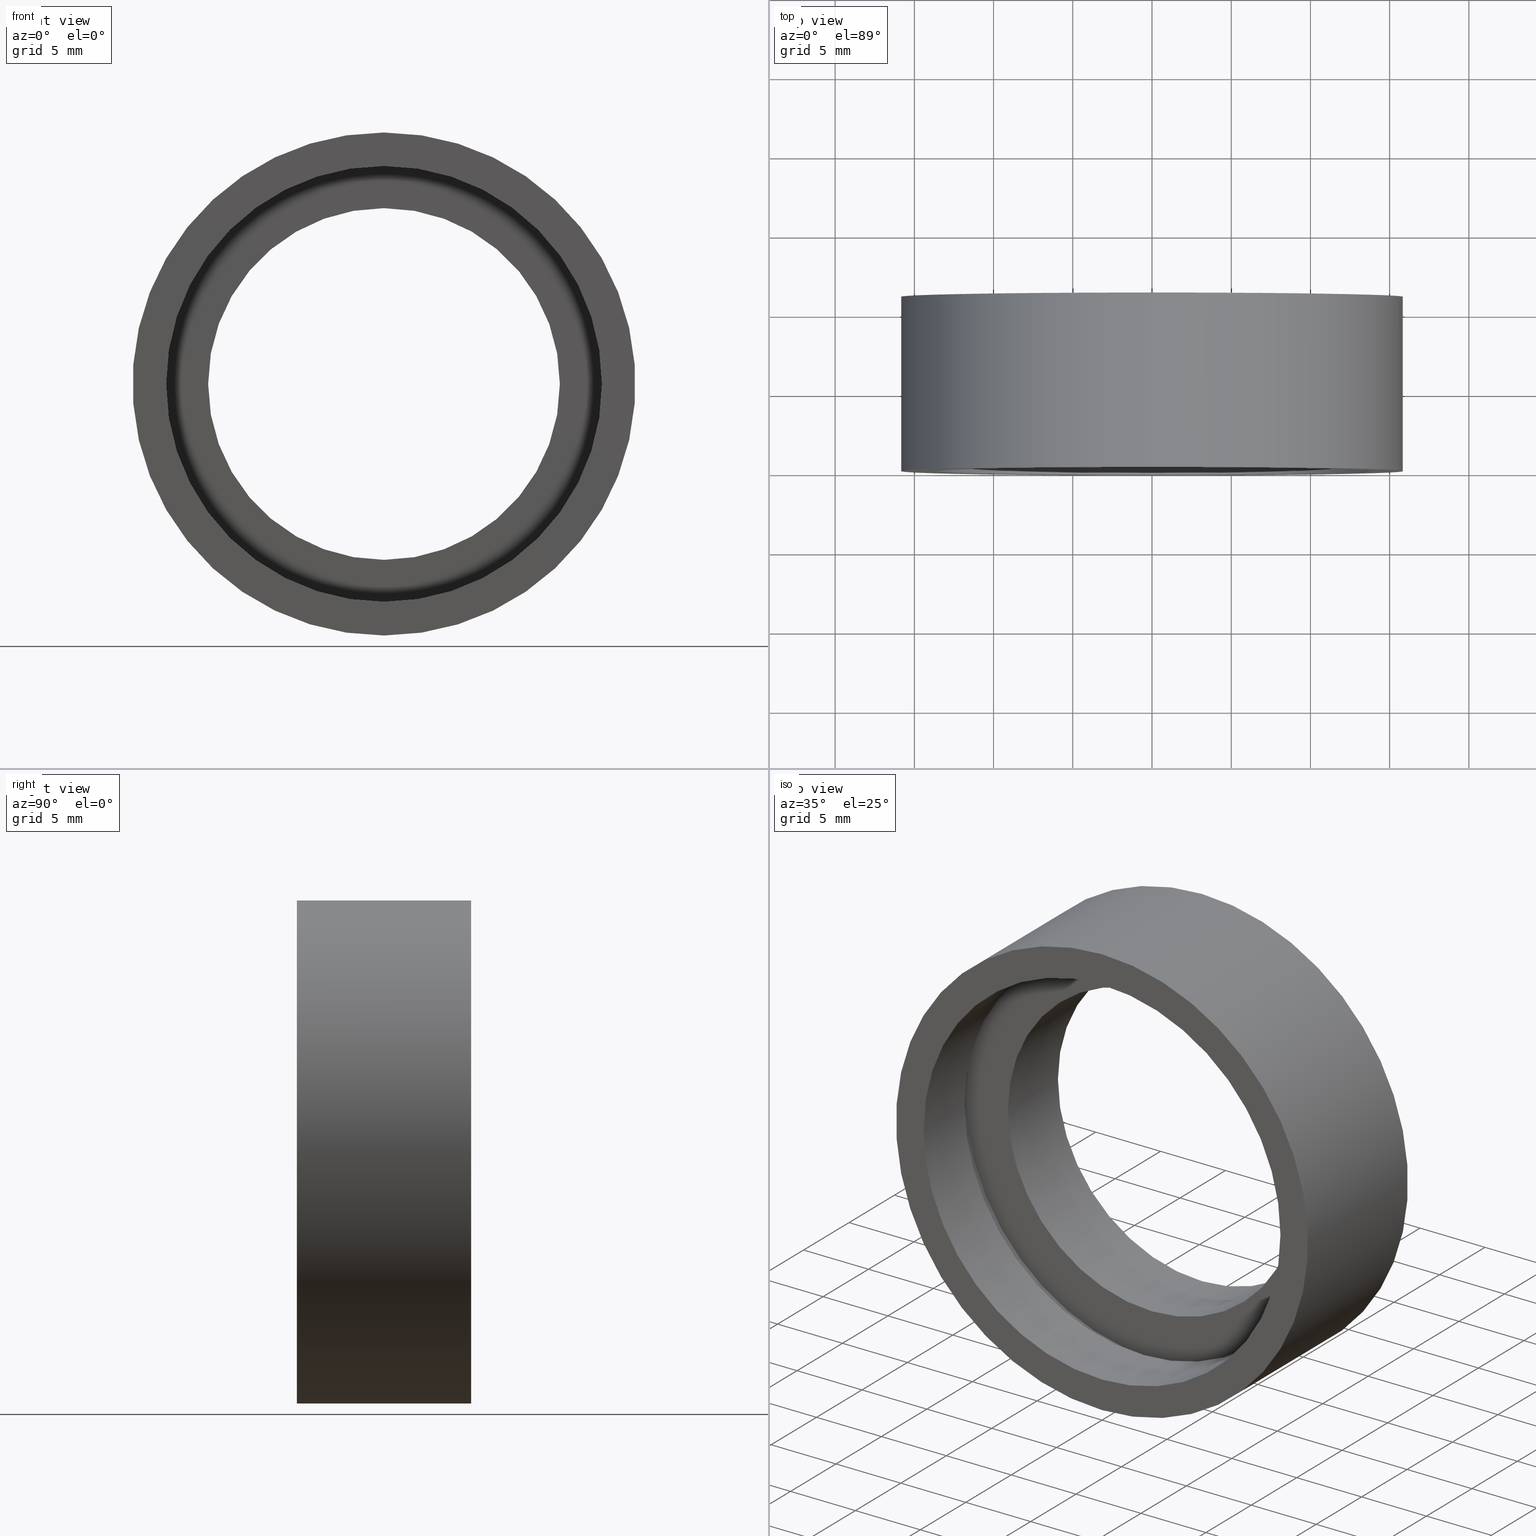
[diagram: canonical four-view strip — front | top / right | iso, engineering-drawing reading convention]
A machine part, canonical four-view strip (front | top / right | iso — engineering-drawing reading convention). The complete STEP part file that produces these views, byte-faithful:
ISO-10303-21;
HEADER;
FILE_DESCRIPTION (( 'STEP AP214' ),
    '1' );
FILE_NAME ('504071.STEP',
    '2019-10-09T07:45:33',
    ( 'user' ),
    ( '΢���й�' ),
    'SwSTEP 2.0',
    'SolidWorks 2016',
    '' );
FILE_SCHEMA (( 'AUTOMOTIVE_DESIGN' ));
ENDSEC;

DATA;
#1 = DIRECTION ( 'NONE',  ( 0.0000000000000000000, 0.0000000000000000000, 1.000000000000000000 ) ) ;
#2 = SURFACE_STYLE_FILL_AREA ( #232 ) ;
#3 = ORIENTED_EDGE ( 'NONE', *, *, #234, .F. ) ;
#4 = CLOSED_SHELL ( 'NONE', ( #98, #358, #142, #395, #177, #137, #25, #7, #118, #172, #170, #427 ) ) ;
#5 = AXIS2_PLACEMENT_3D ( 'NONE', #375, #378, #130 ) ;
#6 = CARTESIAN_POINT ( 'NONE',  ( 0.0000000000000000000, 4.499999999999997300, 14.35000000000000900 ) ) ;
#7 = ADVANCED_FACE ( 'NONE', ( #371 ), #36, .F. ) ;
#8 =( NAMED_UNIT ( * ) SI_UNIT ( $, .STERADIAN. ) SOLID_ANGLE_UNIT ( ) );
#9 = CARTESIAN_POINT ( 'NONE',  ( 0.0000000000000000000, 60.02082041425541100, 0.0000000000000000000 ) ) ;
#10 = DIRECTION ( 'NONE',  ( -0.0000000000000000000, 1.000000000000000000, -0.0000000000000000000 ) ) ;
#11 = CYLINDRICAL_SURFACE ( 'NONE', #72, 14.35000000000000700 ) ;
#12 = ORIENTED_EDGE ( 'NONE', *, *, #290, .T. ) ;
#13 = CIRCLE ( 'NONE', #164, 11.10000000000000700 ) ;
#14 = EDGE_LOOP ( 'NONE', ( #208, #166 ) ) ;
#15 = APPLICATION_PROTOCOL_DEFINITION ( 'draft international standard', 'automotive_design', 1998, #315 ) ;
#16 = DIRECTION ( 'NONE',  ( -0.0000000000000000000, 1.000000000000000000, -0.0000000000000000000 ) ) ;
#17 = DIRECTION ( 'NONE',  ( 0.0000000000000000000, 0.0000000000000000000, 1.000000000000000000 ) ) ;
#18 = PRODUCT_RELATED_PRODUCT_CATEGORY ( 'part', '', ( #100 ) ) ;
#19 = CARTESIAN_POINT ( 'NONE',  ( 1.359357947053563100E-015, 10.99999999999999600, -11.10000000000000700 ) ) ;
#20 = EDGE_LOOP ( 'NONE', ( #90, #251 ) ) ;
#21 = PRESENTATION_STYLE_ASSIGNMENT (( #169 ) ) ;
#22 = EDGE_LOOP ( 'NONE', ( #291, #377, #263, #216 ) ) ;
#23 = AXIS2_PLACEMENT_3D ( 'NONE', #415, #266, #157 ) ;
#24 =( LENGTH_UNIT ( ) NAMED_UNIT ( * ) SI_UNIT ( .MILLI., .METRE. ) );
#25 = ADVANCED_FACE ( 'NONE', ( #105, #343 ), #413, .F. ) ;
#26 = EDGE_CURVE ( 'NONE', #167, #186, #244, .T. ) ;
#27 = ORIENTED_EDGE ( 'NONE', *, *, #152, .T. ) ;
#28 = CARTESIAN_POINT ( 'NONE',  ( 0.0000000000000000000, 60.02082041425541100, 0.0000000000000000000 ) ) ;
#29 = CIRCLE ( 'NONE', #135, 11.10000000000000700 ) ;
#30 =( NAMED_UNIT ( * ) SI_UNIT ( $, .STERADIAN. ) SOLID_ANGLE_UNIT ( ) );
#31 =( NAMED_UNIT ( * ) SI_UNIT ( $, .STERADIAN. ) SOLID_ANGLE_UNIT ( ) );
#32 = PRODUCT_DEFINITION_SHAPE ( 'NONE', 'NONE',  #380 ) ;
#33 = EDGE_LOOP ( 'NONE', ( #300, #280, #84, #311 ) ) ;
#34 = CYLINDRICAL_SURFACE ( 'NONE', #110, 15.87500000000000400 ) ;
#35 = DIRECTION ( 'NONE',  ( -0.0000000000000000000, 1.000000000000000000, 0.0000000000000000000 ) ) ;
#36 = CYLINDRICAL_SURFACE ( 'NONE', #331, 14.35000000000000700 ) ;
#37 = DIRECTION ( 'NONE',  ( 0.0000000000000000000, 0.0000000000000000000, 1.000000000000000000 ) ) ;
#38 = DIRECTION ( 'NONE',  ( 1.000000000000000000, 0.0000000000000000000, 0.0000000000000000000 ) ) ;
#39 = AXIS2_PLACEMENT_3D ( 'NONE', #407, #185, #318 ) ;
#40 = FILL_AREA_STYLE_COLOUR ( '', #310 ) ;
#41 = SURFACE_STYLE_FILL_AREA ( #288 ) ;
#42 = AXIS2_PLACEMENT_3D ( 'NONE', #198, #155, #282 ) ;
#43 = VERTEX_POINT ( 'NONE', #259 ) ;
#44 = SURFACE_STYLE_FILL_AREA ( #393 ) ;
#45 = PRODUCT_DEFINITION_CONTEXT ( 'detailed design', #315, 'design' ) ;
#46 = DIRECTION ( 'NONE',  ( 0.0000000000000000000, 0.0000000000000000000, 1.000000000000000000 ) ) ;
#47 = CARTESIAN_POINT ( 'NONE',  ( 0.0000000000000000000, 0.0000000000000000000, 15.87500000000000400 ) ) ;
#48 = AXIS2_PLACEMENT_3D ( 'NONE', #28, #59, #17 ) ;
#49 = EDGE_CURVE ( 'NONE', #304, #210, #92, .T. ) ;
#50 = CIRCLE ( 'NONE', #73, 14.35000000000000900 ) ;
#51 = CARTESIAN_POINT ( 'NONE',  ( 0.0000000000000000000, 0.0000000000000000000, 0.0000000000000000000 ) ) ;
#52 = SURFACE_STYLE_USAGE ( .BOTH. , #148 ) ;
#53 = FACE_OUTER_BOUND ( 'NONE', #330, .T. ) ;
#54 = CARTESIAN_POINT ( 'NONE',  ( 0.0000000000000000000, 4.499999999999997300, 0.0000000000000000000 ) ) ;
#55 = CARTESIAN_POINT ( 'NONE',  ( 1.944126793646423600E-015, 60.02082041425541100, -15.87500000000000400 ) ) ;
#56 = LINE ( 'NONE', #374, #241 ) ;
#57 = ORIENTED_EDGE ( 'NONE', *, *, #207, .F. ) ;
#58 = CARTESIAN_POINT ( 'NONE',  ( 0.0000000000000000000, 60.02082041425541100, 0.0000000000000000000 ) ) ;
#59 = DIRECTION ( 'NONE',  ( -0.0000000000000000000, 1.000000000000000000, -0.0000000000000000000 ) ) ;
#60 = VERTEX_POINT ( 'NONE', #414 ) ;
#61 = CIRCLE ( 'NONE', #434, 14.35000000000000500 ) ;
#62 = UNCERTAINTY_MEASURE_WITH_UNIT (LENGTH_MEASURE( 1.000000000000000100E-005 ), #347, 'distance_accuracy_value', 'NONE');
#63 =( NAMED_UNIT ( * ) PLANE_ANGLE_UNIT ( ) SI_UNIT ( $, .RADIAN. ) );
#64 = DIRECTION ( 'NONE',  ( -0.0000000000000000000, 1.000000000000000000, -0.0000000000000000000 ) ) ;
#65 = MECHANICAL_DESIGN_GEOMETRIC_PRESENTATION_REPRESENTATION (  '', ( #215 ), #123 ) ;
#66 = FACE_OUTER_BOUND ( 'NONE', #97, .T. ) ;
#67 = ORIENTED_EDGE ( 'NONE', *, *, #124, .T. ) ;
#68 = AXIS2_PLACEMENT_3D ( 'NONE', #257, #296, #85 ) ;
#69 = UNCERTAINTY_MEASURE_WITH_UNIT (LENGTH_MEASURE( 1.000000000000000100E-005 ), #379, 'distance_accuracy_value', 'NONE');
#70 = DIRECTION ( 'NONE',  ( 0.0000000000000000000, 0.0000000000000000000, 1.000000000000000000 ) ) ;
#71 = DIRECTION ( 'NONE',  ( 0.0000000000000000000, 0.0000000000000000000, 1.000000000000000000 ) ) ;
#72 = AXIS2_PLACEMENT_3D ( 'NONE', #58, #283, #46 ) ;
#73 = AXIS2_PLACEMENT_3D ( 'NONE', #54, #120, #160 ) ;
#74 = DIRECTION ( 'NONE',  ( 0.0000000000000000000, 0.0000000000000000000, 1.000000000000000000 ) ) ;
#75 = DIRECTION ( 'NONE',  ( 0.0000000000000000000, -1.000000000000000000, 0.0000000000000000000 ) ) ;
#76 = CYLINDRICAL_SURFACE ( 'NONE', #48, 13.75000000000000700 ) ;
#77 = COLOUR_RGB ( '',1.000000000000000000, 1.000000000000000000, 1.000000000000000000 ) ;
#78 = CARTESIAN_POINT ( 'NONE',  ( 1.359357947053563100E-015, 60.02082041425541100, -11.10000000000000700 ) ) ;
#79 = FILL_AREA_STYLE_COLOUR ( '', #149 ) ;
#80 = CARTESIAN_POINT ( 'NONE',  ( 0.0000000000000000000, 5.499999999999998200, 0.0000000000000000000 ) ) ;
#81 = ORIENTED_EDGE ( 'NONE', *, *, #162, .F. ) ;
#82 = DIRECTION ( 'NONE',  ( 0.0000000000000000000, 0.0000000000000000000, 1.000000000000000000 ) ) ;
#83 = VERTEX_POINT ( 'NONE', #265 ) ;
#84 = ORIENTED_EDGE ( 'NONE', *, *, #307, .F. ) ;
#85 = DIRECTION ( 'NONE',  ( 0.0000000000000000000, 0.0000000000000000000, 1.000000000000000000 ) ) ;
#86 = AXIS2_PLACEMENT_3D ( 'NONE', #51, #133, #82 ) ;
#87 = DIRECTION ( 'NONE',  ( -0.0000000000000000000, 1.000000000000000000, -0.0000000000000000000 ) ) ;
#88 = PRESENTATION_LAYER_ASSIGNMENT (  '', '', ( #94 ) ) ;
#89 = COLOUR_RGB ( '',1.000000000000000000, 1.000000000000000000, 1.000000000000000000 ) ;
#90 = ORIENTED_EDGE ( 'NONE', *, *, #175, .T. ) ;
#91 = FACE_OUTER_BOUND ( 'NONE', #33, .T. ) ;
#92 = LINE ( 'NONE', #55, #313 ) ;
#93 = FILL_AREA_STYLE ('',( #40 ) ) ;
#94 = STYLED_ITEM ( 'NONE', ( #268 ), #172 ) ;
#95 = CARTESIAN_POINT ( 'NONE',  ( 0.0000000000000000000, 0.0000000000000000000, 0.0000000000000000000 ) ) ;
#96 = DIRECTION ( 'NONE',  ( -0.0000000000000000000, 1.000000000000000000, -0.0000000000000000000 ) ) ;
#97 = EDGE_LOOP ( 'NONE', ( #126, #12, #333, #81 ) ) ;
#98 = ADVANCED_FACE ( 'NONE', ( #91 ), #34, .T. ) ;
#99 = APPLICATION_PROTOCOL_DEFINITION ( 'draft international standard', 'automotive_design', 1998, #214 ) ;
#100 = PRODUCT ( '504071', '504071', '', ( #430 ) ) ;
#101 = FILL_AREA_STYLE ('',( #163 ) ) ;
#102 = DIRECTION ( 'NONE',  ( -0.0000000000000000000, 1.000000000000000000, -0.0000000000000000000 ) ) ;
#103 = DIRECTION ( 'NONE',  ( -0.0000000000000000000, 1.000000000000000000, -0.0000000000000000000 ) ) ;
#104 =( NAMED_UNIT ( * ) PLANE_ANGLE_UNIT ( ) SI_UNIT ( $, .RADIAN. ) );
#105 = FACE_BOUND ( 'NONE', #134, .T. ) ;
#106 =( GEOMETRIC_REPRESENTATION_CONTEXT ( 3 ) GLOBAL_UNCERTAINTY_ASSIGNED_CONTEXT ( ( #223 ) ) GLOBAL_UNIT_ASSIGNED_CONTEXT ( ( #359, #398, #428 ) ) REPRESENTATION_CONTEXT ( 'NONE', 'WORKASPACE' ) );
#107 = CARTESIAN_POINT ( 'NONE',  ( 0.0000000000000000000, 0.0000000000000000000, 0.0000000000000000000 ) ) ;
#108 = FACE_OUTER_BOUND ( 'NONE', #426, .T. ) ;
#109 = DIRECTION ( 'NONE',  ( -0.0000000000000000000, 1.000000000000000000, -0.0000000000000000000 ) ) ;
#110 = AXIS2_PLACEMENT_3D ( 'NONE', #306, #334, #412 ) ;
#111 = EDGE_LOOP ( 'NONE', ( #272, #67 ) ) ;
#112 = FACE_OUTER_BOUND ( 'NONE', #122, .T. ) ;
#113 = DIRECTION ( 'NONE',  ( -0.0000000000000000000, 1.000000000000000000, -0.0000000000000000000 ) ) ;
#114 = CARTESIAN_POINT ( 'NONE',  ( 0.0000000000000000000, 60.02082041425541100, 15.87500000000000400 ) ) ;
#115 = CARTESIAN_POINT ( 'NONE',  ( 0.0000000000000000000, 10.99999999999999600, 0.0000000000000000000 ) ) ;
#116 = AXIS2_PLACEMENT_3D ( 'NONE', #131, #182, #180 ) ;
#117 = PRESENTATION_STYLE_ASSIGNMENT (( #52 ) ) ;
#118 = ADVANCED_FACE ( 'NONE', ( #108, #422 ), #190, .F. ) ;
#119 = EDGE_CURVE ( 'NONE', #322, #417, #50, .T. ) ;
#120 = DIRECTION ( 'NONE',  ( -0.0000000000000000000, 1.000000000000000000, -0.0000000000000000000 ) ) ;
#121 =( NAMED_UNIT ( * ) PLANE_ANGLE_UNIT ( ) SI_UNIT ( $, .RADIAN. ) );
#122 = EDGE_LOOP ( 'NONE', ( #57, #381, #425, #174 ) ) ;
#123 =( GEOMETRIC_REPRESENTATION_CONTEXT ( 3 ) GLOBAL_UNCERTAINTY_ASSIGNED_CONTEXT ( ( #391 ) ) GLOBAL_UNIT_ASSIGNED_CONTEXT ( ( #24, #161, #219 ) ) REPRESENTATION_CONTEXT ( 'NONE', 'WORKASPACE' ) );
#124 = EDGE_CURVE ( 'NONE', #186, #167, #192, .T. ) ;
#125 = ORIENTED_EDGE ( 'NONE', *, *, #281, .F. ) ;
#126 = ORIENTED_EDGE ( 'NONE', *, *, #299, .F. ) ;
#127 = CIRCLE ( 'NONE', #86, 15.87500000000000400 ) ;
#128 = AXIS2_PLACEMENT_3D ( 'NONE', #324, #64, #179 ) ;
#129 = CARTESIAN_POINT ( 'NONE',  ( 14.35000000000000500, 5.500000000000000000, 0.0000000000000000000 ) ) ;
#130 = DIRECTION ( 'NONE',  ( 0.0000000000000000000, 0.0000000000000000000, 1.000000000000000000 ) ) ;
#131 = CARTESIAN_POINT ( 'NONE',  ( 11.10000000000000700, 11.00000000000000000, 0.0000000000000000000 ) ) ;
#132 = AXIS2_PLACEMENT_3D ( 'NONE', #270, #16, #235 ) ;
#133 = DIRECTION ( 'NONE',  ( -0.0000000000000000000, 1.000000000000000000, -0.0000000000000000000 ) ) ;
#134 = EDGE_LOOP ( 'NONE', ( #355, #351 ) ) ;
#135 = AXIS2_PLACEMENT_3D ( 'NONE', #352, #401, #70 ) ;
#136 = CARTESIAN_POINT ( 'NONE',  ( 0.0000000000000000000, 60.02082041425541100, 0.0000000000000000000 ) ) ;
#137 = ADVANCED_FACE ( 'NONE', ( #404 ), #76, .F. ) ;
#138 = CIRCLE ( 'NONE', #159, 15.87500000000000400 ) ;
#139 = EDGE_LOOP ( 'NONE', ( #189, #327, #336, #354 ) ) ;
#140 = DIRECTION ( 'NONE',  ( -0.0000000000000000000, 1.000000000000000000, -0.0000000000000000000 ) ) ;
#141 = AXIS2_PLACEMENT_3D ( 'NONE', #314, #384, #71 ) ;
#142 = ADVANCED_FACE ( 'NONE', ( #66 ), #11, .F. ) ;
#143 = CARTESIAN_POINT ( 'NONE',  ( 0.0000000000000000000, 10.99999999999999600, 15.87500000000000400 ) ) ;
#144 = CARTESIAN_POINT ( 'NONE',  ( 0.0000000000000000000, 60.02082041425541100, 0.0000000000000000000 ) ) ;
#145 = AXIS2_PLACEMENT_3D ( 'NONE', #144, #140, #402 ) ;
#146 = DIRECTION ( 'NONE',  ( -0.0000000000000000000, 1.000000000000000000, -0.0000000000000000000 ) ) ;
#147 = STYLED_ITEM ( 'NONE', ( #117 ), #395 ) ;
#148 = SURFACE_SIDE_STYLE ('',( #230 ) ) ;
#149 = COLOUR_RGB ( '',1.000000000000000000, 1.000000000000000000, 1.000000000000000000 ) ;
#150 = CARTESIAN_POINT ( 'NONE',  ( 0.0000000000000000000, 4.499999999999997300, 13.75000000000000700 ) ) ;
#151 = AXIS2_PLACEMENT_3D ( 'NONE', #129, #35, #278 ) ;
#152 = EDGE_CURVE ( 'NONE', #228, #317, #387, .T. ) ;
#153 = CIRCLE ( 'NONE', #293, 15.87500000000000400 ) ;
#154 = ORIENTED_EDGE ( 'NONE', *, *, #299, .T. ) ;
#155 = DIRECTION ( 'NONE',  ( -0.0000000000000000000, 1.000000000000000000, -0.0000000000000000000 ) ) ;
#156 = STYLED_ITEM ( 'NONE', ( #21 ), #335 ) ;
#157 = DIRECTION ( 'NONE',  ( 0.0000000000000000000, 0.0000000000000000000, 1.000000000000000000 ) ) ;
#158 = CARTESIAN_POINT ( 'NONE',  ( 1.757368156776452800E-015, 60.02082041425541100, -14.35000000000000700 ) ) ;
#159 = AXIS2_PLACEMENT_3D ( 'NONE', #115, #203, #247 ) ;
#160 = DIRECTION ( 'NONE',  ( 0.0000000000000000000, 0.0000000000000000000, 1.000000000000000000 ) ) ;
#161 =( NAMED_UNIT ( * ) PLANE_ANGLE_UNIT ( ) SI_UNIT ( $, .RADIAN. ) );
#162 = EDGE_CURVE ( 'NONE', #322, #253, #56, .T. ) ;
#163 = FILL_AREA_STYLE_COLOUR ( '', #77 ) ;
#164 = AXIS2_PLACEMENT_3D ( 'NONE', #365, #363, #408 ) ;
#165 = LINE ( 'NONE', #396, #260 ) ;
#166 = ORIENTED_EDGE ( 'NONE', *, *, #173, .T. ) ;
#167 = VERTEX_POINT ( 'NONE', #256 ) ;
#168 = CARTESIAN_POINT ( 'NONE',  ( 0.0000000000000000000, 5.499999999999998200, 0.0000000000000000000 ) ) ;
#169 = SURFACE_STYLE_USAGE ( .BOTH. , #245 ) ;
#170 = ADVANCED_FACE ( 'NONE', ( #242, #217 ), #222, .F. ) ;
#171 = DIRECTION ( 'NONE',  ( -0.0000000000000000000, 1.000000000000000000, -0.0000000000000000000 ) ) ;
#172 = ADVANCED_FACE ( 'NONE', ( #112 ), #239, .F. ) ;
#173 = EDGE_CURVE ( 'NONE', #210, #338, #138, .T. ) ;
#174 = ORIENTED_EDGE ( 'NONE', *, *, #281, .T. ) ;
#175 = EDGE_CURVE ( 'NONE', #43, #83, #29, .T. ) ;
#176 = CYLINDRICAL_SURFACE ( 'NONE', #145, 15.87500000000000400 ) ;
#177 = ADVANCED_FACE ( 'NONE', ( #53, #287 ), #267, .F. ) ;
#178 = PRESENTATION_LAYER_ASSIGNMENT (  '', '', ( #156 ) ) ;
#179 = DIRECTION ( 'NONE',  ( 0.0000000000000000000, 0.0000000000000000000, 1.000000000000000000 ) ) ;
#180 = DIRECTION ( 'NONE',  ( 0.0000000000000000000, -0.0000000000000000000, -1.000000000000000000 ) ) ;
#181 = LINE ( 'NONE', #78, #237 ) ;
#182 = DIRECTION ( 'NONE',  ( 0.0000000000000000000, -1.000000000000000000, 0.0000000000000000000 ) ) ;
#183 = CARTESIAN_POINT ( 'NONE',  ( 0.0000000000000000000, 0.0000000000000000000, 0.0000000000000000000 ) ) ;
#184 = SHAPE_DEFINITION_REPRESENTATION ( #32, #218 ) ;
#185 = DIRECTION ( 'NONE',  ( -0.0000000000000000000, 1.000000000000000000, -0.0000000000000000000 ) ) ;
#186 = VERTEX_POINT ( 'NONE', #346 ) ;
#187 = CARTESIAN_POINT ( 'NONE',  ( 0.0000000000000000000, 60.02082041425541100, 0.0000000000000000000 ) ) ;
#188 = PRESENTATION_STYLE_ASSIGNMENT (( #394 ) ) ;
#189 = ORIENTED_EDGE ( 'NONE', *, *, #290, .F. ) ;
#190 = PLANE ( 'NONE',  #151 ) ;
#191 = ORIENTED_EDGE ( 'NONE', *, *, #400, .T. ) ;
#192 = CIRCLE ( 'NONE', #128, 13.75000000000000700 ) ;
#193 =( LENGTH_UNIT ( ) NAMED_UNIT ( * ) SI_UNIT ( .MILLI., .METRE. ) );
#194 = VECTOR ( 'NONE', #113, 1000.000000000000000 ) ;
#195 =( LENGTH_UNIT ( ) NAMED_UNIT ( * ) SI_UNIT ( .MILLI., .METRE. ) );
#196 = EDGE_LOOP ( 'NONE', ( #348, #212, #397, #3 ) ) ;
#197 = DIRECTION ( 'NONE',  ( -0.0000000000000000000, 1.000000000000000000, -0.0000000000000000000 ) ) ;
#198 = CARTESIAN_POINT ( 'NONE',  ( 0.0000000000000000000, 60.02082041425541100, 0.0000000000000000000 ) ) ;
#199 =( LENGTH_UNIT ( ) NAMED_UNIT ( * ) SI_UNIT ( .MILLI., .METRE. ) );
#200 = SURFACE_STYLE_USAGE ( .BOTH. , #209 ) ;
#201 =( NAMED_UNIT ( * ) SI_UNIT ( $, .STERADIAN. ) SOLID_ANGLE_UNIT ( ) );
#202 = MECHANICAL_DESIGN_GEOMETRIC_PRESENTATION_REPRESENTATION (  '', ( #156 ), #220 ) ;
#203 = DIRECTION ( 'NONE',  ( -0.0000000000000000000, 1.000000000000000000, -0.0000000000000000000 ) ) ;
#204 = SURFACE_STYLE_USAGE ( .BOTH. , #294 ) ;
#205 = FACE_OUTER_BOUND ( 'NONE', #279, .T. ) ;
#206 = AXIS2_PLACEMENT_3D ( 'NONE', #9, #10, #74 ) ;
#207 = EDGE_CURVE ( 'NONE', #83, #228, #181, .T. ) ;
#208 = ORIENTED_EDGE ( 'NONE', *, *, #307, .T. ) ;
#209 = SURFACE_SIDE_STYLE ('',( #224 ) ) ;
#210 = VERTEX_POINT ( 'NONE', #308 ) ;
#211 = FILL_AREA_STYLE ('',( #236 ) ) ;
#212 = ORIENTED_EDGE ( 'NONE', *, *, #350, .T. ) ;
#213 = CYLINDRICAL_SURFACE ( 'NONE', #248, 13.75000000000000700 ) ;
#214 = APPLICATION_CONTEXT ( 'automotive_design' ) ;
#215 = STYLED_ITEM ( 'NONE', ( #301 ), #218 ) ;
#216 = ORIENTED_EDGE ( 'NONE', *, *, #246, .T. ) ;
#217 = FACE_OUTER_BOUND ( 'NONE', #14, .T. ) ;
#218 = ADVANCED_BREP_SHAPE_REPRESENTATION ( '504071', ( #335, #225 ), #432 ) ;
#219 =( NAMED_UNIT ( * ) SI_UNIT ( $, .STERADIAN. ) SOLID_ANGLE_UNIT ( ) );
#220 =( GEOMETRIC_REPRESENTATION_CONTEXT ( 3 ) GLOBAL_UNCERTAINTY_ASSIGNED_CONTEXT ( ( #69 ) ) GLOBAL_UNIT_ASSIGNED_CONTEXT ( ( #379, #121, #30 ) ) REPRESENTATION_CONTEXT ( 'NONE', 'WORKASPACE' ) );
#221 = VERTEX_POINT ( 'NONE', #150 ) ;
#222 = PLANE ( 'NONE',  #116 ) ;
#223 = UNCERTAINTY_MEASURE_WITH_UNIT (LENGTH_MEASURE( 1.000000000000000100E-005 ), #359, 'distance_accuracy_value', 'NONE');
#224 = SURFACE_STYLE_FILL_AREA ( #211 ) ;
#225 = AXIS2_PLACEMENT_3D ( 'NONE', #95, #418, #38 ) ;
#226 = EDGE_LOOP ( 'NONE', ( #125, #286 ) ) ;
#227 = FACE_OUTER_BOUND ( 'NONE', #361, .T. ) ;
#228 = VERTEX_POINT ( 'NONE', #19 ) ;
#229 = EDGE_CURVE ( 'NONE', #261, #338, #420, .T. ) ;
#230 = SURFACE_STYLE_FILL_AREA ( #101 ) ;
#231 = CARTESIAN_POINT ( 'NONE',  ( 13.75000000000000700, 4.499999999999999100, 0.0000000000000000000 ) ) ;
#232 = FILL_AREA_STYLE ('',( #79 ) ) ;
#233 = CARTESIAN_POINT ( 'NONE',  ( 1.944126793646423600E-015, 0.0000000000000000000, -15.87500000000000400 ) ) ;
#234 = EDGE_CURVE ( 'NONE', #167, #221, #360, .T. ) ;
#235 = DIRECTION ( 'NONE',  ( 0.0000000000000000000, 0.0000000000000000000, 1.000000000000000000 ) ) ;
#236 = FILL_AREA_STYLE_COLOUR ( '', #431 ) ;
#237 = VECTOR ( 'NONE', #171, 1000.000000000000000 ) ;
#238 = CIRCLE ( 'NONE', #68, 13.75000000000000700 ) ;
#239 = CYLINDRICAL_SURFACE ( 'NONE', #206, 11.10000000000000700 ) ;
#240 = DIRECTION ( 'NONE',  ( -0.0000000000000000000, 1.000000000000000000, -0.0000000000000000000 ) ) ;
#241 = VECTOR ( 'NONE', #102, 1000.000000000000000 ) ;
#242 = FACE_BOUND ( 'NONE', #226, .T. ) ;
#243 = UNCERTAINTY_MEASURE_WITH_UNIT (LENGTH_MEASURE( 1.000000000000000100E-005 ), #195, 'distance_accuracy_value', 'NONE');
#244 = CIRCLE ( 'NONE', #262, 13.75000000000000700 ) ;
#245 = SURFACE_SIDE_STYLE ('',( #41 ) ) ;
#246 = EDGE_CURVE ( 'NONE', #221, #340, #238, .T. ) ;
#247 = DIRECTION ( 'NONE',  ( 0.0000000000000000000, 0.0000000000000000000, 1.000000000000000000 ) ) ;
#248 = AXIS2_PLACEMENT_3D ( 'NONE', #136, #96, #37 ) ;
#249 = DIRECTION ( 'NONE',  ( -0.0000000000000000000, 1.000000000000000000, -0.0000000000000000000 ) ) ;
#250 = DIRECTION ( 'NONE',  ( -0.0000000000000000000, 1.000000000000000000, -0.0000000000000000000 ) ) ;
#251 = ORIENTED_EDGE ( 'NONE', *, *, #295, .T. ) ;
#252 = FACE_OUTER_BOUND ( 'NONE', #196, .T. ) ;
#253 = VERTEX_POINT ( 'NONE', #325 ) ;
#254 = DIRECTION ( 'NONE',  ( -0.0000000000000000000, 1.000000000000000000, -0.0000000000000000000 ) ) ;
#255 = STYLED_ITEM ( 'NONE', ( #188 ), #358 ) ;
#256 = CARTESIAN_POINT ( 'NONE',  ( 0.0000000000000000000, 0.0000000000000000000, 13.75000000000000700 ) ) ;
#257 = CARTESIAN_POINT ( 'NONE',  ( 0.0000000000000000000, 4.499999999999997300, 0.0000000000000000000 ) ) ;
#258 = DIRECTION ( 'NONE',  ( 0.0000000000000000000, 0.0000000000000000000, 1.000000000000000000 ) ) ;
#259 = CARTESIAN_POINT ( 'NONE',  ( 0.0000000000000000000, 5.499999999999998200, 11.10000000000000700 ) ) ;
#260 = VECTOR ( 'NONE', #356, 1000.000000000000000 ) ;
#261 = VERTEX_POINT ( 'NONE', #47 ) ;
#262 = AXIS2_PLACEMENT_3D ( 'NONE', #107, #109, #264 ) ;
#263 = ORIENTED_EDGE ( 'NONE', *, *, #234, .T. ) ;
#264 = DIRECTION ( 'NONE',  ( 0.0000000000000000000, 0.0000000000000000000, 1.000000000000000000 ) ) ;
#265 = CARTESIAN_POINT ( 'NONE',  ( 1.359357947053563100E-015, 5.499999999999998200, -11.10000000000000700 ) ) ;
#266 = DIRECTION ( 'NONE',  ( -0.0000000000000000000, 1.000000000000000000, -0.0000000000000000000 ) ) ;
#267 = PLANE ( 'NONE',  #141 ) ;
#268 = PRESENTATION_STYLE_ASSIGNMENT (( #200 ) ) ;
#269 = PRESENTATION_STYLE_ASSIGNMENT (( #353 ) ) ;
#270 = CARTESIAN_POINT ( 'NONE',  ( 0.0000000000000000000, 4.499999999999997300, 0.0000000000000000000 ) ) ;
#271 =( NAMED_UNIT ( * ) PLANE_ANGLE_UNIT ( ) SI_UNIT ( $, .RADIAN. ) );
#272 = ORIENTED_EDGE ( 'NONE', *, *, #26, .T. ) ;
#273 = CIRCLE ( 'NONE', #23, 15.87500000000000400 ) ;
#274 = CYLINDRICAL_SURFACE ( 'NONE', #42, 11.10000000000000700 ) ;
#275 = PRESENTATION_LAYER_ASSIGNMENT (  '', '', ( #255 ) ) ;
#276 = AXIS2_PLACEMENT_3D ( 'NONE', #231, #75, #367 ) ;
#277 = VECTOR ( 'NONE', #250, 1000.000000000000000 ) ;
#278 = DIRECTION ( 'NONE',  ( 0.0000000000000000000, 0.0000000000000000000, 1.000000000000000000 ) ) ;
#279 = EDGE_LOOP ( 'NONE', ( #382, #321, #27, #370 ) ) ;
#280 = ORIENTED_EDGE ( 'NONE', *, *, #49, .T. ) ;
#281 = EDGE_CURVE ( 'NONE', #317, #228, #13, .T. ) ;
#282 = DIRECTION ( 'NONE',  ( 0.0000000000000000000, 0.0000000000000000000, 1.000000000000000000 ) ) ;
#283 = DIRECTION ( 'NONE',  ( -0.0000000000000000000, 1.000000000000000000, -0.0000000000000000000 ) ) ;
#284 = ORIENTED_EDGE ( 'NONE', *, *, #119, .T. ) ;
#285 = COLOUR_RGB ( '',1.000000000000000000, 1.000000000000000000, 1.000000000000000000 ) ;
#286 = ORIENTED_EDGE ( 'NONE', *, *, #152, .F. ) ;
#287 = FACE_BOUND ( 'NONE', #111, .T. ) ;
#288 = FILL_AREA_STYLE ('',( #342 ) ) ;
#289 = DIRECTION ( 'NONE',  ( 0.0000000000000000000, 0.0000000000000000000, 1.000000000000000000 ) ) ;
#290 = EDGE_CURVE ( 'NONE', #417, #60, #328, .T. ) ;
#291 = ORIENTED_EDGE ( 'NONE', *, *, #350, .F. ) ;
#292 = ORIENTED_EDGE ( 'NONE', *, *, #429, .F. ) ;
#293 = AXIS2_PLACEMENT_3D ( 'NONE', #183, #240, #289 ) ;
#294 = SURFACE_SIDE_STYLE ('',( #337 ) ) ;
#295 = EDGE_CURVE ( 'NONE', #83, #43, #303, .T. ) ;
#296 = DIRECTION ( 'NONE',  ( -0.0000000000000000000, 1.000000000000000000, -0.0000000000000000000 ) ) ;
#297 = MECHANICAL_DESIGN_GEOMETRIC_PRESENTATION_REPRESENTATION (  '', ( #255 ), #106 ) ;
#298 = ORIENTED_EDGE ( 'NONE', *, *, #406, .F. ) ;
#299 = EDGE_CURVE ( 'NONE', #417, #322, #341, .T. ) ;
#300 = ORIENTED_EDGE ( 'NONE', *, *, #429, .T. ) ;
#301 = PRESENTATION_STYLE_ASSIGNMENT (( #204 ) ) ;
#302 =( NAMED_UNIT ( * ) SI_UNIT ( $, .STERADIAN. ) SOLID_ANGLE_UNIT ( ) );
#303 = CIRCLE ( 'NONE', #39, 11.10000000000000700 ) ;
#304 = VERTEX_POINT ( 'NONE', #233 ) ;
#305 = VECTOR ( 'NONE', #87, 1000.000000000000000 ) ;
#306 = CARTESIAN_POINT ( 'NONE',  ( 0.0000000000000000000, 60.02082041425541100, 0.0000000000000000000 ) ) ;
#307 = EDGE_CURVE ( 'NONE', #338, #210, #273, .T. ) ;
#308 = CARTESIAN_POINT ( 'NONE',  ( 1.944126793646423600E-015, 10.99999999999999600, -15.87500000000000400 ) ) ;
#309 =( NAMED_UNIT ( * ) PLANE_ANGLE_UNIT ( ) SI_UNIT ( $, .RADIAN. ) );
#310 = COLOUR_RGB ( '',1.000000000000000000, 1.000000000000000000, 1.000000000000000000 ) ;
#311 = ORIENTED_EDGE ( 'NONE', *, *, #229, .F. ) ;
#312 = CARTESIAN_POINT ( 'NONE',  ( 0.0000000000000000000, 60.02082041425541100, 13.75000000000000700 ) ) ;
#313 = VECTOR ( 'NONE', #411, 1000.000000000000000 ) ;
#314 = CARTESIAN_POINT ( 'NONE',  ( 15.87500000000000400, -3.245314017740484500E-016, 0.0000000000000000000 ) ) ;
#315 = APPLICATION_CONTEXT ( 'automotive_design' ) ;
#316 = CIRCLE ( 'NONE', #386, 14.35000000000000500 ) ;
#317 = VERTEX_POINT ( 'NONE', #362 ) ;
#318 = DIRECTION ( 'NONE',  ( 0.0000000000000000000, 0.0000000000000000000, 1.000000000000000000 ) ) ;
#319 = EDGE_CURVE ( 'NONE', #340, #221, #423, .T. ) ;
#320 = ORIENTED_EDGE ( 'NONE', *, *, #383, .F. ) ;
#321 = ORIENTED_EDGE ( 'NONE', *, *, #207, .T. ) ;
#322 = VERTEX_POINT ( 'NONE', #6 ) ;
#323 = PRESENTATION_LAYER_ASSIGNMENT (  '', '', ( #147 ) ) ;
#324 = CARTESIAN_POINT ( 'NONE',  ( 0.0000000000000000000, 0.0000000000000000000, 0.0000000000000000000 ) ) ;
#325 = CARTESIAN_POINT ( 'NONE',  ( 0.0000000000000000000, 5.499999999999998200, 14.35000000000000500 ) ) ;
#326 = DIRECTION ( 'NONE',  ( 0.0000000000000000000, 0.0000000000000000000, 1.000000000000000000 ) ) ;
#327 = ORIENTED_EDGE ( 'NONE', *, *, #119, .F. ) ;
#328 = LINE ( 'NONE', #158, #305 ) ;
#329 = ORIENTED_EDGE ( 'NONE', *, *, #400, .F. ) ;
#330 = EDGE_LOOP ( 'NONE', ( #292, #329 ) ) ;
#331 = AXIS2_PLACEMENT_3D ( 'NONE', #187, #254, #326 ) ;
#332 = EDGE_CURVE ( 'NONE', #43, #317, #433, .T. ) ;
#333 = ORIENTED_EDGE ( 'NONE', *, *, #406, .T. ) ;
#334 = DIRECTION ( 'NONE',  ( -0.0000000000000000000, 1.000000000000000000, -0.0000000000000000000 ) ) ;
#335 = MANIFOLD_SOLID_BREP ( '��ת1', #4 ) ;
#336 = ORIENTED_EDGE ( 'NONE', *, *, #162, .T. ) ;
#337 = SURFACE_STYLE_FILL_AREA ( #93 ) ;
#338 = VERTEX_POINT ( 'NONE', #143 ) ;
#339 = CARTESIAN_POINT ( 'NONE',  ( 0.0000000000000000000, 4.499999999999997300, 0.0000000000000000000 ) ) ;
#340 = VERTEX_POINT ( 'NONE', #403 ) ;
#341 = CIRCLE ( 'NONE', #390, 14.35000000000000900 ) ;
#342 = FILL_AREA_STYLE_COLOUR ( '', #285 ) ;
#343 = FACE_OUTER_BOUND ( 'NONE', #366, .T. ) ;
#344 = MECHANICAL_DESIGN_GEOMETRIC_PRESENTATION_REPRESENTATION (  '', ( #147 ), #364 ) ;
#345 = ORIENTED_EDGE ( 'NONE', *, *, #229, .T. ) ;
#346 = CARTESIAN_POINT ( 'NONE',  ( 1.683889348827611600E-015, 0.0000000000000000000, -13.75000000000000700 ) ) ;
#347 =( LENGTH_UNIT ( ) NAMED_UNIT ( * ) SI_UNIT ( .MILLI., .METRE. ) );
#348 = ORIENTED_EDGE ( 'NONE', *, *, #124, .F. ) ;
#349 = CARTESIAN_POINT ( 'NONE',  ( 1.757368156776453200E-015, 4.499999999999997300, -14.35000000000001000 ) ) ;
#350 = EDGE_CURVE ( 'NONE', #186, #340, #165, .T. ) ;
#351 = ORIENTED_EDGE ( 'NONE', *, *, #319, .F. ) ;
#352 = CARTESIAN_POINT ( 'NONE',  ( 0.0000000000000000000, 5.499999999999998200, 0.0000000000000000000 ) ) ;
#353 = SURFACE_STYLE_USAGE ( .BOTH. , #368 ) ;
#354 = ORIENTED_EDGE ( 'NONE', *, *, #383, .T. ) ;
#355 = ORIENTED_EDGE ( 'NONE', *, *, #246, .F. ) ;
#356 = DIRECTION ( 'NONE',  ( -0.0000000000000000000, 1.000000000000000000, -0.0000000000000000000 ) ) ;
#357 = PRODUCT_DEFINITION_FORMATION_WITH_SPECIFIED_SOURCE ( '�κ�', '', #100, .NOT_KNOWN. ) ;
#358 = ADVANCED_FACE ( 'NONE', ( #205 ), #274, .F. ) ;
#359 =( LENGTH_UNIT ( ) NAMED_UNIT ( * ) SI_UNIT ( .MILLI., .METRE. ) );
#360 = LINE ( 'NONE', #312, #385 ) ;
#361 = EDGE_LOOP ( 'NONE', ( #410, #191, #345, #389 ) ) ;
#362 = CARTESIAN_POINT ( 'NONE',  ( 0.0000000000000000000, 10.99999999999999600, 11.10000000000000700 ) ) ;
#363 = DIRECTION ( 'NONE',  ( -0.0000000000000000000, 1.000000000000000000, -0.0000000000000000000 ) ) ;
#364 =( GEOMETRIC_REPRESENTATION_CONTEXT ( 3 ) GLOBAL_UNCERTAINTY_ASSIGNED_CONTEXT ( ( #243 ) ) GLOBAL_UNIT_ASSIGNED_CONTEXT ( ( #195, #104, #31 ) ) REPRESENTATION_CONTEXT ( 'NONE', 'WORKASPACE' ) );
#365 = CARTESIAN_POINT ( 'NONE',  ( 0.0000000000000000000, 10.99999999999999600, 0.0000000000000000000 ) ) ;
#366 = EDGE_LOOP ( 'NONE', ( #284, #154 ) ) ;
#367 = DIRECTION ( 'NONE',  ( 0.0000000000000000000, -0.0000000000000000000, -1.000000000000000000 ) ) ;
#368 = SURFACE_SIDE_STYLE ('',( #2 ) ) ;
#369 = STYLED_ITEM ( 'NONE', ( #269 ), #137 ) ;
#370 = ORIENTED_EDGE ( 'NONE', *, *, #332, .F. ) ;
#371 = FACE_OUTER_BOUND ( 'NONE', #139, .T. ) ;
#372 = CARTESIAN_POINT ( 'NONE',  ( 0.0000000000000000000, 60.02082041425541100, 11.10000000000000700 ) ) ;
#373 = PRESENTATION_LAYER_ASSIGNMENT (  '', '', ( #369 ) ) ;
#374 = CARTESIAN_POINT ( 'NONE',  ( 0.0000000000000000000, 60.02082041425541100, 14.35000000000000700 ) ) ;
#375 = CARTESIAN_POINT ( 'NONE',  ( 0.0000000000000000000, 10.99999999999999600, 0.0000000000000000000 ) ) ;
#376 = DIRECTION ( 'NONE',  ( 0.0000000000000000000, 0.0000000000000000000, 1.000000000000000000 ) ) ;
#377 = ORIENTED_EDGE ( 'NONE', *, *, #26, .F. ) ;
#378 = DIRECTION ( 'NONE',  ( -0.0000000000000000000, 1.000000000000000000, -0.0000000000000000000 ) ) ;
#379 =( LENGTH_UNIT ( ) NAMED_UNIT ( * ) SI_UNIT ( .MILLI., .METRE. ) );
#380 = PRODUCT_DEFINITION ( 'δ֪', '', #357, #45 ) ;
#381 = ORIENTED_EDGE ( 'NONE', *, *, #175, .F. ) ;
#382 = ORIENTED_EDGE ( 'NONE', *, *, #295, .F. ) ;
#383 = EDGE_CURVE ( 'NONE', #253, #60, #61, .T. ) ;
#384 = DIRECTION ( 'NONE',  ( -0.0000000000000000000, 1.000000000000000000, 0.0000000000000000000 ) ) ;
#385 = VECTOR ( 'NONE', #103, 1000.000000000000000 ) ;
#386 = AXIS2_PLACEMENT_3D ( 'NONE', #80, #146, #1 ) ;
#387 = CIRCLE ( 'NONE', #5, 11.10000000000000700 ) ;
#388 = PRESENTATION_LAYER_ASSIGNMENT (  '', '', ( #215 ) ) ;
#389 = ORIENTED_EDGE ( 'NONE', *, *, #173, .F. ) ;
#390 = AXIS2_PLACEMENT_3D ( 'NONE', #339, #249, #258 ) ;
#391 = UNCERTAINTY_MEASURE_WITH_UNIT (LENGTH_MEASURE( 1.000000000000000100E-005 ), #24, 'distance_accuracy_value', 'NONE');
#392 = MECHANICAL_DESIGN_GEOMETRIC_PRESENTATION_REPRESENTATION (  '', ( #369 ), #419 ) ;
#393 = FILL_AREA_STYLE ('',( #409 ) ) ;
#394 = SURFACE_STYLE_USAGE ( .BOTH. , #399 ) ;
#395 = ADVANCED_FACE ( 'NONE', ( #252 ), #213, .F. ) ;
#396 = CARTESIAN_POINT ( 'NONE',  ( 1.683889348827611600E-015, 60.02082041425541100, -13.75000000000000700 ) ) ;
#397 = ORIENTED_EDGE ( 'NONE', *, *, #319, .T. ) ;
#398 =( NAMED_UNIT ( * ) PLANE_ANGLE_UNIT ( ) SI_UNIT ( $, .RADIAN. ) );
#399 = SURFACE_SIDE_STYLE ('',( #44 ) ) ;
#400 = EDGE_CURVE ( 'NONE', #304, #261, #127, .T. ) ;
#401 = DIRECTION ( 'NONE',  ( -0.0000000000000000000, 1.000000000000000000, -0.0000000000000000000 ) ) ;
#402 = DIRECTION ( 'NONE',  ( 0.0000000000000000000, 0.0000000000000000000, 1.000000000000000000 ) ) ;
#403 = CARTESIAN_POINT ( 'NONE',  ( 1.683889348827611600E-015, 4.499999999999997300, -13.75000000000000700 ) ) ;
#404 = FACE_OUTER_BOUND ( 'NONE', #22, .T. ) ;
#405 =( GEOMETRIC_REPRESENTATION_CONTEXT ( 3 ) GLOBAL_UNCERTAINTY_ASSIGNED_CONTEXT ( ( #421 ) ) GLOBAL_UNIT_ASSIGNED_CONTEXT ( ( #199, #309, #201 ) ) REPRESENTATION_CONTEXT ( 'NONE', 'WORKASPACE' ) );
#406 = EDGE_CURVE ( 'NONE', #60, #253, #316, .T. ) ;
#407 = CARTESIAN_POINT ( 'NONE',  ( 0.0000000000000000000, 5.499999999999998200, 0.0000000000000000000 ) ) ;
#408 = DIRECTION ( 'NONE',  ( 0.0000000000000000000, 0.0000000000000000000, 1.000000000000000000 ) ) ;
#409 = FILL_AREA_STYLE_COLOUR ( '', #89 ) ;
#410 = ORIENTED_EDGE ( 'NONE', *, *, #49, .F. ) ;
#411 = DIRECTION ( 'NONE',  ( -0.0000000000000000000, 1.000000000000000000, -0.0000000000000000000 ) ) ;
#412 = DIRECTION ( 'NONE',  ( 0.0000000000000000000, 0.0000000000000000000, 1.000000000000000000 ) ) ;
#413 = PLANE ( 'NONE',  #276 ) ;
#414 = CARTESIAN_POINT ( 'NONE',  ( 1.757368156776452800E-015, 5.499999999999998200, -14.35000000000000500 ) ) ;
#415 = CARTESIAN_POINT ( 'NONE',  ( 0.0000000000000000000, 10.99999999999999600, 0.0000000000000000000 ) ) ;
#416 = MECHANICAL_DESIGN_GEOMETRIC_PRESENTATION_REPRESENTATION (  '', ( #94 ), #405 ) ;
#417 = VERTEX_POINT ( 'NONE', #349 ) ;
#418 = DIRECTION ( 'NONE',  ( 0.0000000000000000000, 0.0000000000000000000, 1.000000000000000000 ) ) ;
#419 =( GEOMETRIC_REPRESENTATION_CONTEXT ( 3 ) GLOBAL_UNCERTAINTY_ASSIGNED_CONTEXT ( ( #424 ) ) GLOBAL_UNIT_ASSIGNED_CONTEXT ( ( #193, #63, #302 ) ) REPRESENTATION_CONTEXT ( 'NONE', 'WORKASPACE' ) );
#420 = LINE ( 'NONE', #114, #194 ) ;
#421 = UNCERTAINTY_MEASURE_WITH_UNIT (LENGTH_MEASURE( 1.000000000000000100E-005 ), #199, 'distance_accuracy_value', 'NONE');
#422 = FACE_BOUND ( 'NONE', #20, .T. ) ;
#423 = CIRCLE ( 'NONE', #132, 13.75000000000000700 ) ;
#424 = UNCERTAINTY_MEASURE_WITH_UNIT (LENGTH_MEASURE( 1.000000000000000100E-005 ), #193, 'distance_accuracy_value', 'NONE');
#425 = ORIENTED_EDGE ( 'NONE', *, *, #332, .T. ) ;
#426 = EDGE_LOOP ( 'NONE', ( #320, #298 ) ) ;
#427 = ADVANCED_FACE ( 'NONE', ( #227 ), #176, .T. ) ;
#428 =( NAMED_UNIT ( * ) SI_UNIT ( $, .STERADIAN. ) SOLID_ANGLE_UNIT ( ) );
#429 = EDGE_CURVE ( 'NONE', #261, #304, #153, .T. ) ;
#430 = PRODUCT_CONTEXT ( 'NONE', #214, 'mechanical' ) ;
#431 = COLOUR_RGB ( '',1.000000000000000000, 1.000000000000000000, 1.000000000000000000 ) ;
#432 =( GEOMETRIC_REPRESENTATION_CONTEXT ( 3 ) GLOBAL_UNCERTAINTY_ASSIGNED_CONTEXT ( ( #62 ) ) GLOBAL_UNIT_ASSIGNED_CONTEXT ( ( #347, #271, #8 ) ) REPRESENTATION_CONTEXT ( 'NONE', 'WORKASPACE' ) );
#433 = LINE ( 'NONE', #372, #277 ) ;
#434 = AXIS2_PLACEMENT_3D ( 'NONE', #168, #197, #376 ) ;
ENDSEC;
END-ISO-10303-21;
